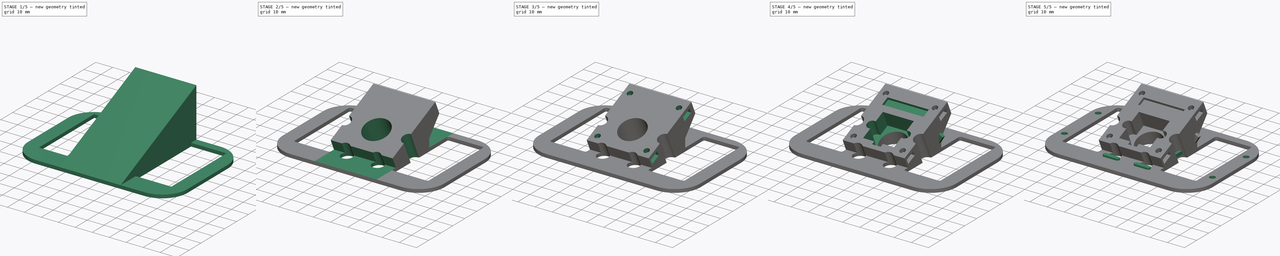
[diagram: build sequence overview — one tinted view per stage of 5, left to right]
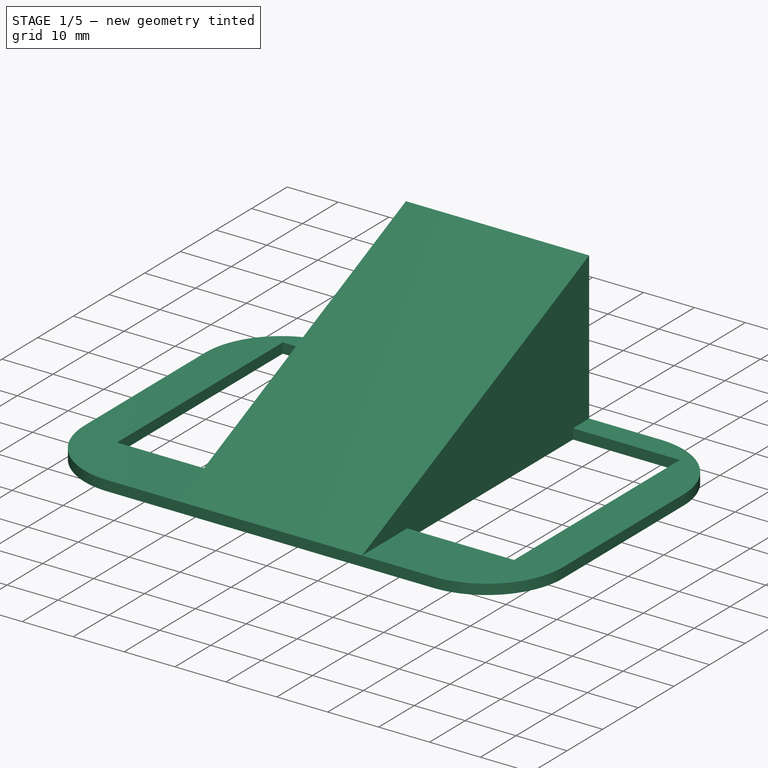
[diagram: stage 1 of 5 — iso view after this stage's code; geometry added in this stage tinted green]
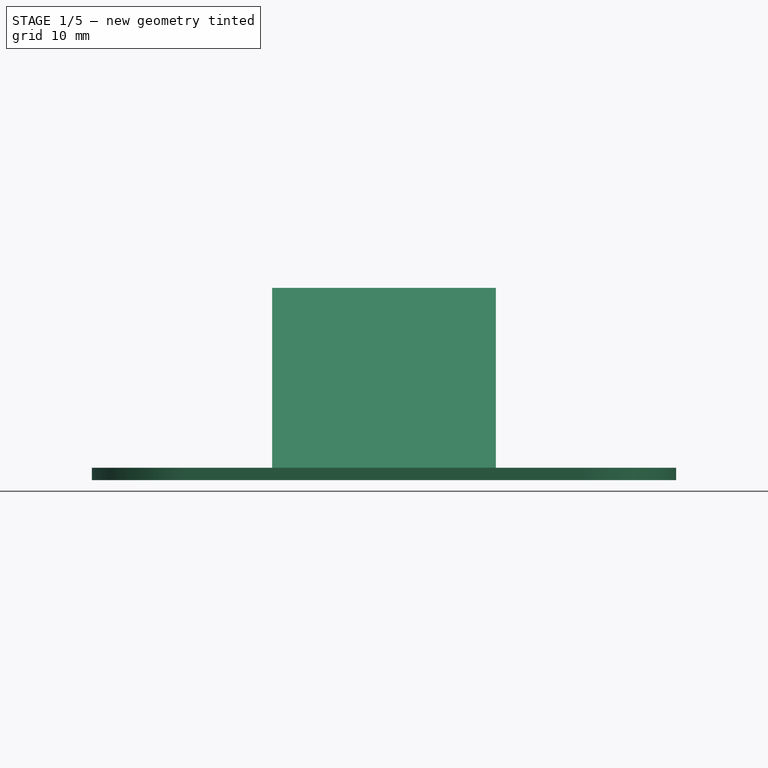
[diagram: stage 1 of 5 — front view after this stage's code; geometry added in this stage tinted green]
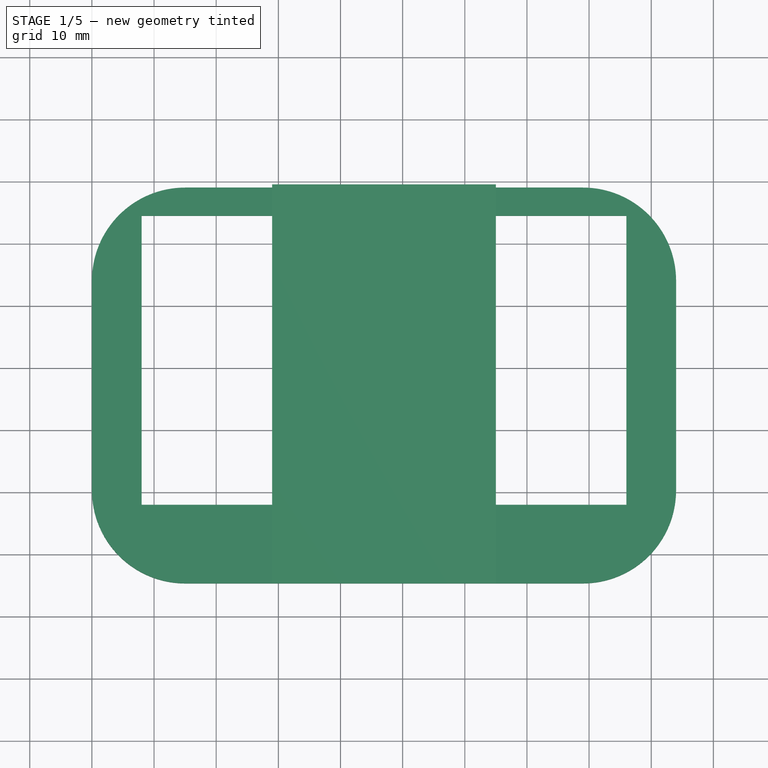
[diagram: stage 1 of 5 — top view after this stage's code; geometry added in this stage tinted green]
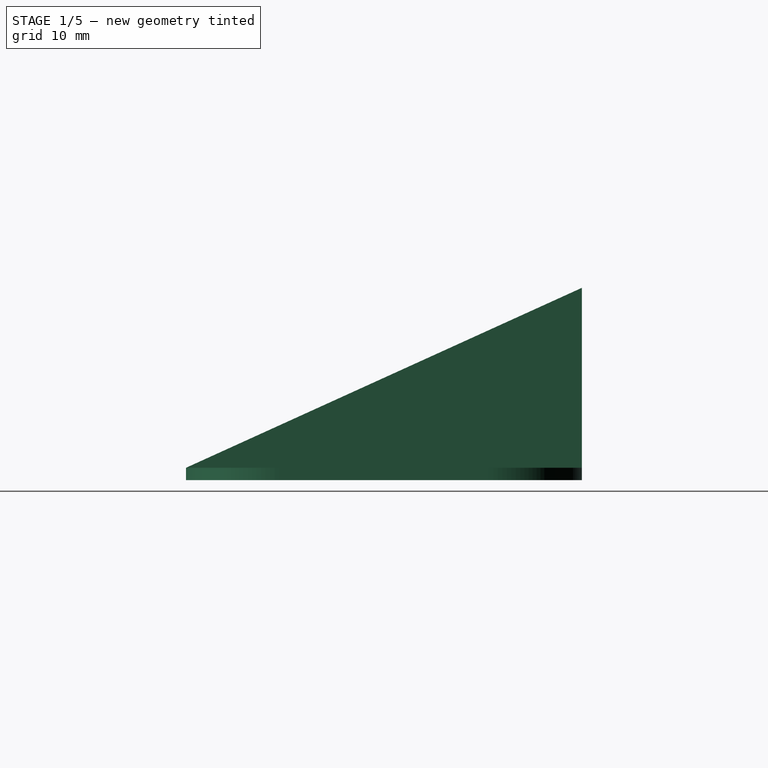
[diagram: stage 1 of 5 — right view after this stage's code; geometry added in this stage tinted green]
FCSTD DOCUMENT  (FreeCAD 0.18R4 (GitTag))
Label: Cameramount
License: CreativeCommons Attribution-NonCommercial
LicenseURL: http://creativecommons.org/licenses/by-nc/4.0/
objects: Sketcher::SketchObject×15, PartDesign::Pocket×10, PartDesign::Pad×5, PartDesign::Fillet×1, PartDesign::Body×1
note: 47 computed .brp shape members not serialized (recipe doc carries the construction recipe); baked Part::Feature solids carry a one-line shape summary decoded from their .brp

FEATURE [Sketcher::SketchObject] Sketch144
  AttachmentOffset = pos=(0,0,57) rot=(0,0,1;0rad)
  MapMode = 5
  Placement = pos=(57,-1.27e-14,1.27e-14) rot=(0.57735,0.57735,0.57735;2.0944rad)
  Support = -> [YZ_Plane019]
  sketch-geometry (3):
    g0: LineSegment StartX=-14.65 StartY=44 StartZ=0 EndX=49.05 EndY=44 EndZ=0
    g1: LineSegment StartX=49.05 StartY=44 StartZ=0 EndX=49.05 EndY=72.9546 EndZ=0
    g2: LineSegment StartX=49.05 StartY=72.9546 StartZ=0 EndX=-14.65 EndY=44 EndZ=0
  constraints (9):
    c: Horizontal(g0)
    c: Coincident(g0,g1)
    c: Vertical(g1)
    c: Coincident(g1,g2)
    c: Coincident(g2,g0)
    c: Angle(g0,g2) = 0.426628
    c: DistanceY(g-1,g0) = 44
    c: DistanceX(g0,g-1) = 14.65
    c: DistanceX(g0,g0) = 63.7
FEATURE [Sketcher::SketchObject] Sketch143
  AttachmentOffset = pos=(0,0,42) rot=(0,0,1;0rad)
  MapMode = 5
  Placement = pos=(0,0,42) rot=(0,0,1;0rad)
  Support = -> [XY_Plane019]
  sketch-geometry (8):
    g0: ArcOfCircle CenterX=25 CenterY=0.35 CenterZ=0 NormalX=0 NormalY=0 NormalZ=1 AngleXU=0 Radius=15 StartAngle=3.14159 EndAngle=4.71239
    g1: LineSegment StartX=25 StartY=-14.65 StartZ=0 EndX=89 EndY=-14.65 EndZ=0
    g2: ArcOfCircle CenterX=89 CenterY=0.35 CenterZ=0 NormalX=0 NormalY=0 NormalZ=1 AngleXU=0 Radius=15 StartAngle=4.71239 EndAngle=6.28319
    g3: ArcOfCircle CenterX=25 CenterY=34.05 CenterZ=0 NormalX=0 NormalY=0 NormalZ=1 AngleXU=0 Radius=15 StartAngle=1.5708 EndAngle=3.14159
    g4: LineSegment StartX=25 StartY=49.05 StartZ=0 EndX=89 EndY=49.05 EndZ=0
    g5: LineSegment StartX=10 StartY=34.05 StartZ=0 EndX=10 EndY=0.35 EndZ=0
    g6: ArcOfCircle CenterX=89 CenterY=34.05 CenterZ=0 NormalX=0 NormalY=0 NormalZ=1 AngleXU=0 Radius=15 StartAngle=0 EndAngle=1.5708
    g7: LineSegment StartX=104 StartY=34.05 StartZ=0 EndX=104 EndY=0.35 EndZ=0
  constraints (21):
    c: Horizontal(g1)
    c: Tangent(g1,g0) = -1.5708
    c: Angle(g0) = 1.5708
    c: DistanceX(g-1,g0) = 25
    c: DistanceX(g1,g1) = 64
    c: Equal(g0,g2)
    c: DistanceY(g0,g-1) = 14.65
    c: Horizontal(g4)
    c: Vertical(g0,g3)
    c: Vertical(g4,g1)
    c: Tangent(g2,g1) = -1.5708
    c: Tangent(g4,g3) = 1.5708
    c: Vertical(g5)
    c: Coincident(g5,g0)
    c: Tangent(g5,g3) = -1.5708
    c: DistanceY(g0,g3) = 63.7
    c: Vertical(g7)
    c: Tangent(g7,g2) = 1.5708
    c: Tangent(g7,g6) = 1.5708
    c: Tangent(g6,g4) = 1.5708
    c: DistanceX(g-1,g0) = 10
FEATURE [Sketcher::SketchObject] Sketch154
  AttachmentOffset = pos=(0,0,-29) rot=(0,0,1;0rad)
  MapMode = 5
  Placement = pos=(0,29,6.4e-15) rot=(1,0,0;1.5708rad)
  Support = -> [XZ_Plane019]
  sketch-geometry (6):
    g0: LineSegment StartX=39 StartY=47 StartZ=0 EndX=39 EndY=52 EndZ=0
    g1: LineSegment StartX=39 StartY=52 StartZ=0 EndX=36.8349 EndY=50.75 EndZ=0
    g2: LineSegment StartX=36.8349 StartY=50.75 StartZ=0 EndX=39 EndY=47 EndZ=0
    g3: LineSegment StartX=75 StartY=52 StartZ=0 EndX=75 EndY=47 EndZ=0
    g4: LineSegment StartX=75 StartY=47 StartZ=0 EndX=77.1651 EndY=50.75 EndZ=0
    g5: LineSegment StartX=77.1651 StartY=50.75 StartZ=0 EndX=75 EndY=52 EndZ=0
  constraints (18):
    c: Vertical(g0)
    c: Coincident(g0,g1)
    c: Coincident(g1,g2)
    c: Coincident(g2,g0)
    c: Vertical(g3)
    c: Coincident(g3,g4)
    c: Coincident(g4,g5)
    c: Coincident(g5,g3)
    c: Equal(g0,g3)
    c: Equal(g5,g1)
    c: Equal(g2,g4)
    c: Perpendicular(g5,g4)
    c: Horizontal(g3,g0)
    c: DistanceX(g0,g3) = 36
    c: DistanceX(g-1,g0) = 39
    c: DistanceY(g-1,g0) = 47
    c: Angle(g3,g5) = 1.0472
    c: DistanceY(g3,g3) = 5
FEATURE [PartDesign::Pad] Pad047  label="Base"
  Length = 2
  Length2 = 100
  Profile = -> Sketch143
  Type = 0
FEATURE [PartDesign::Pad] Pad048  label="Camerawedge"
  BaseFeature = -> Pad047
  Length = 18
  Length2 = 18
  Profile = -> Sketch144
  Type = 4
FEATURE [Sketcher::SketchObject] Sketch145
  MapMode = 5
  Placement = pos=(0,0,44) rot=(0,0,1;0rad)
  Support = -> [Pad048]
  sketch-geometry (8):
    g0: LineSegment StartX=75 StartY=-2 StartZ=0 EndX=96 EndY=-2 EndZ=0
    g1: LineSegment StartX=96 StartY=-2 StartZ=0 EndX=96 EndY=44.5 EndZ=0
    g2: LineSegment StartX=96 StartY=44.5 StartZ=0 EndX=75 EndY=44.5 EndZ=0
    g3: LineSegment StartX=75 StartY=44.5 StartZ=0 EndX=75 EndY=-2 EndZ=0
    g4: LineSegment StartX=18 StartY=-2 StartZ=0 EndX=39 EndY=-2 EndZ=0
    g5: LineSegment StartX=39 StartY=-2 StartZ=0 EndX=39 EndY=44.5 EndZ=0
    g6: LineSegment StartX=39 StartY=44.5 StartZ=0 EndX=18 EndY=44.5 EndZ=0
    g7: LineSegment StartX=18 StartY=44.5 StartZ=0 EndX=18 EndY=-2 EndZ=0
  constraints (24):
    c: Coincident(g0,g1)
    c: Coincident(g1,g2)
    c: Coincident(g2,g3)
    c: Coincident(g3,g0)
    c: Horizontal(g0)
    c: Horizontal(g2)
    c: Vertical(g1)
    c: Vertical(g3)
    c: Coincident(g4,g5)
    c: Coincident(g5,g6)
    c: Coincident(g6,g7)
    c: Coincident(g7,g4)
    c: Horizontal(g4)
    c: Horizontal(g6)
    c: Vertical(g5)
    c: Vertical(g7)
    c: DistanceX(g6,g6) = 21
    c: DistanceX(g5,g2) = 36
    c: DistanceX(g-1,g5) = 39
    c: DistanceY(g7,g7) = 46.5
    c: Horizontal(g5,g2)
    c: Equal(g1,g7)
    c: Equal(g2,g6)
    c: DistanceY(g4,g-1) = 2
FEATURE [PartDesign::Pocket] Pocket061  label="Ultrasonic Sensor Holes"
  BaseFeature = -> Pad048
  Length = 2
  Length2 = 100
  Profile = -> Sketch145
  Type = 0
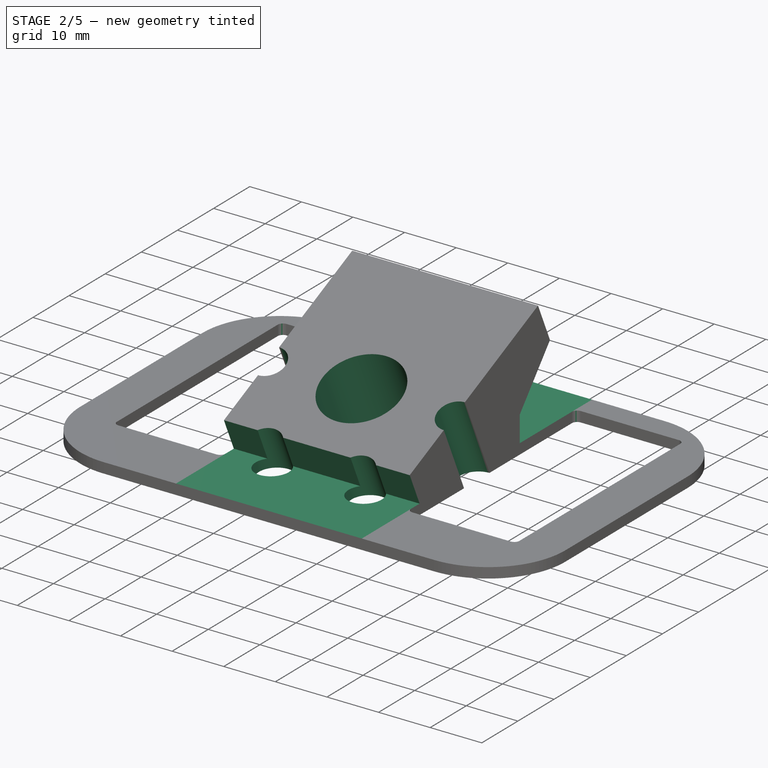
[diagram: stage 2 of 5 — iso view after this stage's code; geometry added in this stage tinted green]
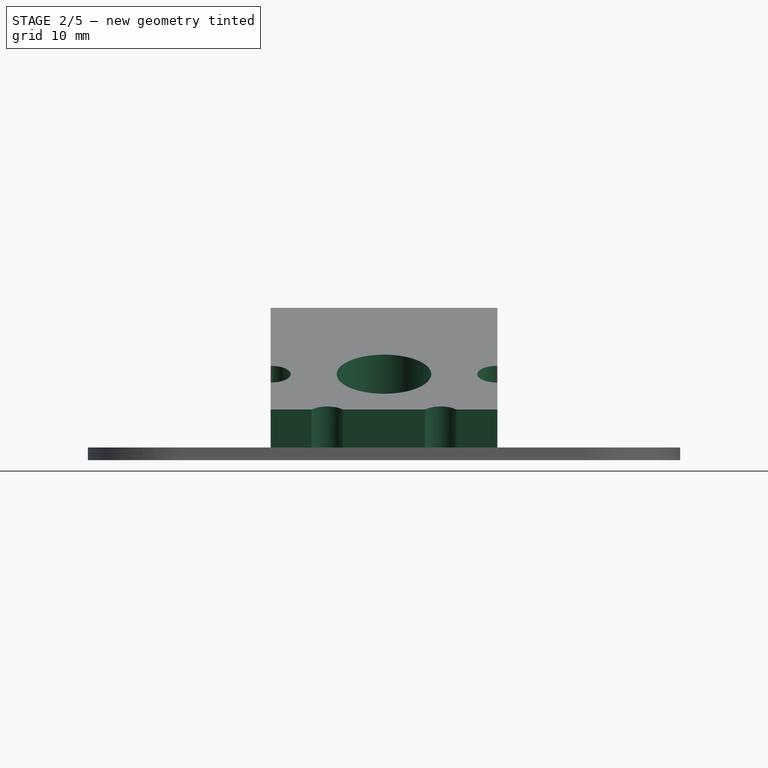
[diagram: stage 2 of 5 — front view after this stage's code; geometry added in this stage tinted green]
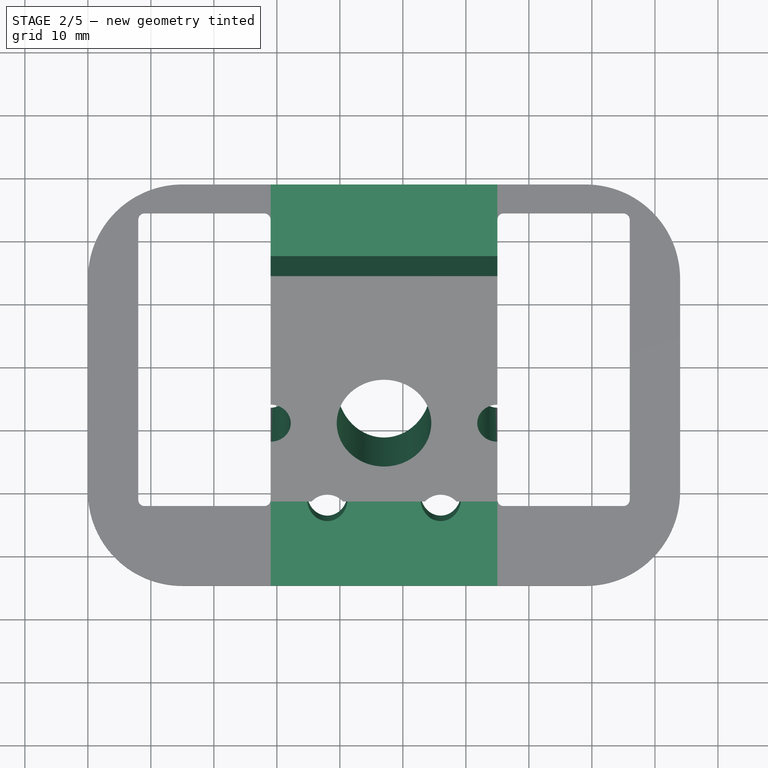
[diagram: stage 2 of 5 — top view after this stage's code; geometry added in this stage tinted green]
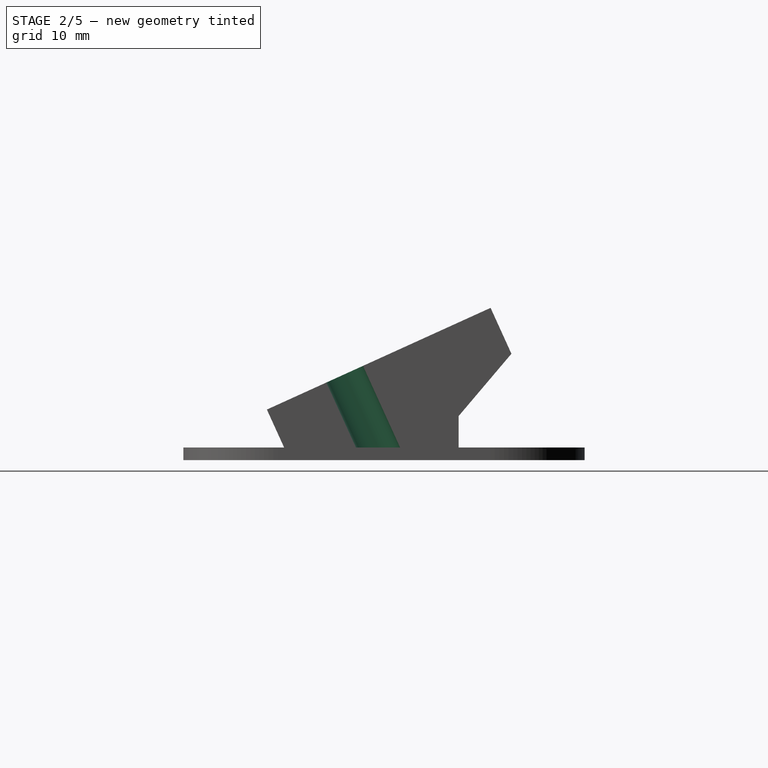
[diagram: stage 2 of 5 — right view after this stage's code; geometry added in this stage tinted green]
FEATURE [PartDesign::Fillet] Fillet010  label="Smooth Ultrasonic Sensor Holes"
  Base = -> Pocket061 [Edge58,Edge57,Edge55,Edge56,Edge50,Edge51,Edge52,Edge54]
  BaseFeature = -> Pocket061
  Radius = 1
FEATURE [Sketcher::SketchObject] Sketch146
  ExternalGeometry = -> [Fillet010]
  MapMode = 5
  Placement = pos=(75,-1.65e-14,1.87e-14) rot=(0.57735,0.57735,0.57735;2.0944rad)
  Support = -> [Fillet010]
  sketch-geometry (9):
    g0: LineSegment StartX=-14.65 StartY=44 StartZ=0 EndX=1.35 EndY=44 EndZ=0
    g1: LineSegment StartX=1.35 StartY=44 StartZ=0 EndX=-1.38974 EndY=50.0274 EndZ=0
    g2: LineSegment StartX=-1.38974 StartY=50.0274 StartZ=0 EndX=-14.65 EndY=44 EndZ=0
    g3: LineSegment StartX=34.1145 StartY=66.1657 StartZ=0 EndX=37.425 EndY=58.8828 EndZ=0
    g4: LineSegment StartX=37.425 StartY=58.8828 StartZ=0 EndX=29.05 EndY=49 EndZ=0
    g5: LineSegment StartX=29.05 StartY=44 StartZ=0 EndX=49.05 EndY=44 EndZ=0
    g6: LineSegment StartX=49.05 StartY=44 StartZ=0 EndX=49.05 EndY=72.9546 EndZ=0
    g7: LineSegment StartX=49.05 StartY=72.9546 StartZ=0 EndX=34.1145 EndY=66.1657 EndZ=0
    g8: LineSegment StartX=29.05 StartY=44 StartZ=0 EndX=29.05 EndY=49 EndZ=0
  constraints (25):
    c: Horizontal(g0)
    c: Coincident(g0,g1)
    c: Coincident(g1,g2)
    c: Coincident(g0,g2)
    c: Coincident(g0,g-3)
    c: PointOnObject(g1,g-4)
    c: Perpendicular(g1,g2)
    c: DistanceX(g0,g0) = 16
    c: PointOnObject(g3,g-4)
    c: Coincident(g3,g4)
    c: Horizontal(g5)
    c: Coincident(g5,g6)
    c: Coincident(g6,g-4)
    c: Vertical(g6)
    c: Coincident(g6,g7)
    c: Coincident(g7,g3)
    c: Perpendicular(g7,g3)
    c: Horizontal(g5,g0)
    c: Distance(g3) = 8
    c: DistanceX(g5,g5) = 20
    c: Distance(g3,g1) = 39
    c: Coincident(g8,g5)
    c: Coincident(g8,g4)
    c: Vertical(g8)
    c: DistanceY(g8,g8) = 5
FEATURE [PartDesign::Pocket] Pocket062  label="Reduce Camerawedge"
  BaseFeature = -> Fillet010
  Length = 36
  Length2 = 100
  Profile = -> Sketch146
  Type = 0
FEATURE [Sketcher::SketchObject] Sketch148
  AttachmentOffset = pos=(0,0,-18) rot=(0,0,1;0rad)
  MapMode = 5
  Placement = pos=(-9.6e-15,-11.6355,25.598) rot=(1,0,0;0.426628rad)
  Support = -> [Pocket062]
  sketch-geometry (15):
    g0: LineSegment [constr] StartX=66 StartY=48.5885 StartZ=0 EndX=48 EndY=48.5885 EndZ=0
    g1: LineSegment [constr] StartX=48 StartY=48.5885 StartZ=0 EndX=39 EndY=33 EndZ=0
    g2: LineSegment [constr] StartX=39 StartY=33 StartZ=0 EndX=48 EndY=17.4115 EndZ=0
    g3: LineSegment [constr] StartX=48 StartY=17.4115 StartZ=0 EndX=66 EndY=17.4115 EndZ=0
    g4: LineSegment [constr] StartX=66 StartY=17.4115 StartZ=0 EndX=75 EndY=33 EndZ=0
    g5: LineSegment [constr] StartX=75 StartY=33 StartZ=0 EndX=66 EndY=48.5885 EndZ=0
    g6: Circle [constr] CenterX=57 CenterY=33 CenterZ=0 NormalX=0 NormalY=0 NormalZ=1 AngleXU=0 Radius=18
    g7: Circle [constr] CenterX=66 CenterY=17.4115 CenterZ=0 NormalX=0 NormalY=0 NormalZ=1 AngleXU=0 Radius=1.6e-15
    g8: Circle CenterX=48 CenterY=48.5885 CenterZ=0 NormalX=0 NormalY=0 NormalZ=1 AngleXU=0 Radius=3.2
    g9: Circle CenterX=66 CenterY=48.5885 CenterZ=0 NormalX=0 NormalY=0 NormalZ=1 AngleXU=0 Radius=3.2
    g10: Circle [constr] CenterX=39 CenterY=33 CenterZ=0 NormalX=0 NormalY=0 NormalZ=1 AngleXU=0 Radius=3.2
    g11: Circle [constr] CenterX=48 CenterY=17.4115 CenterZ=0 NormalX=0 NormalY=0 NormalZ=1 AngleXU=0 Radius=3.2
    g12: Circle [constr] CenterX=66 CenterY=17.4115 CenterZ=0 NormalX=0 NormalY=0 NormalZ=1 AngleXU=0 Radius=3.2
    g13: Circle [constr] CenterX=75 CenterY=33 CenterZ=0 NormalX=0 NormalY=0 NormalZ=1 AngleXU=0 Radius=3.2
    g14: Circle [constr] CenterX=57 CenterY=33 CenterZ=0 NormalX=0 NormalY=0 NormalZ=1 AngleXU=0 Radius=7.5
  constraints (33):
    c: Coincident(g0,g1)
    c: Coincident(g1,g2)
    c: Coincident(g2,g3)
    c: Coincident(g3,g4)
    c: Coincident(g4,g5)
    c: Coincident(g5,g0)
    c: Equal(g0, g1-g5) x5
    c: PointOnObject(g0,g6)
    c: PointOnObject(g1,g6)
    c: PointOnObject(g2,g6)
    c: PointOnObject(g3,g6)
    c: PointOnObject(g4,g6)
    c: PointOnObject(g5,g6)
    c: DistanceX(g0,g0) = 18
    c: DistanceX(g-1,g6) = 57
    c: DistanceY(g-1,g6) = 33
    c: Horizontal(g0)
    c: Coincident(g7,g3)
    c: Tangent(g7,g6)
    c: Coincident(g8,g0)
    c: Coincident(g9,g0)
    c: Equal(g8,g9)
    c: Coincident(g10,g1)
    c: Coincident(g11,g2)
    c: Coincident(g12,g7)
    c: Coincident(g13,g4)
    c: Equal(g13,g10)
    c: Equal(g10,g11)
    c: Equal(g11,g12)
    c: Equal(g13,g9)
    c: Radius(g13) = 3.2
    c: Coincident(g14,g6)
    c: Radius(g14) = 7.5
FEATURE [Sketcher::SketchObject] Sketch147
  MapMode = 5
  Placement = pos=(-1.57e-14,-19.0839,41.9846) rot=(1,0,0;0.426628rad)
  Support = -> [Pocket062]
  sketch-geometry (15):
    g0: LineSegment [constr] StartX=66 StartY=48.5885 StartZ=0 EndX=48 EndY=48.5885 EndZ=0
    g1: LineSegment [constr] StartX=48 StartY=48.5885 StartZ=0 EndX=39 EndY=33 EndZ=0
    g2: LineSegment [constr] StartX=39 StartY=33 StartZ=0 EndX=48 EndY=17.4115 EndZ=0
    g3: LineSegment [constr] StartX=48 StartY=17.4115 StartZ=0 EndX=66 EndY=17.4115 EndZ=0
    g4: LineSegment [constr] StartX=66 StartY=17.4115 StartZ=0 EndX=75 EndY=33 EndZ=0
    g5: LineSegment [constr] StartX=75 StartY=33 StartZ=0 EndX=66 EndY=48.5885 EndZ=0
    g6: Circle [constr] CenterX=57 CenterY=33 CenterZ=0 NormalX=0 NormalY=0 NormalZ=1 AngleXU=0 Radius=18
    g7: Circle [constr] CenterX=66 CenterY=17.4115 CenterZ=0 NormalX=0 NormalY=0 NormalZ=1 AngleXU=0 Radius=1.6e-15
    g8: Circle [constr] CenterX=48 CenterY=48.5885 CenterZ=0 NormalX=0 NormalY=0 NormalZ=1 AngleXU=0 Radius=3.2
    g9: Circle [constr] CenterX=66 CenterY=48.5885 CenterZ=0 NormalX=0 NormalY=0 NormalZ=1 AngleXU=0 Radius=3.2
    g10: Circle CenterX=39 CenterY=33 CenterZ=0 NormalX=0 NormalY=0 NormalZ=1 AngleXU=0 Radius=3.2
    g11: Circle CenterX=48 CenterY=17.4115 CenterZ=0 NormalX=0 NormalY=0 NormalZ=1 AngleXU=0 Radius=3.2
    g12: Circle CenterX=66 CenterY=17.4115 CenterZ=0 NormalX=0 NormalY=0 NormalZ=1 AngleXU=0 Radius=3.2
    g13: Circle CenterX=75 CenterY=33 CenterZ=0 NormalX=0 NormalY=0 NormalZ=1 AngleXU=0 Radius=3.2
    g14: Circle CenterX=57 CenterY=33 CenterZ=0 NormalX=0 NormalY=0 NormalZ=1 AngleXU=0 Radius=7.5
  constraints (33):
    c: Coincident(g0,g1)
    c: Coincident(g1,g2)
    c: Coincident(g2,g3)
    c: Coincident(g3,g4)
    c: Coincident(g4,g5)
    c: Coincident(g5,g0)
    c: Equal(g0, g1-g5) x5
    c: PointOnObject(g0,g6)
    c: PointOnObject(g1,g6)
    c: PointOnObject(g2,g6)
    c: PointOnObject(g3,g6)
    c: PointOnObject(g4,g6)
    c: PointOnObject(g5,g6)
    c: DistanceX(g0,g0) = 18
    c: DistanceX(g-1,g6) = 57
    c: DistanceY(g-1,g6) = 33
    c: Horizontal(g0)
    c: Coincident(g7,g3)
    c: Tangent(g7,g6)
    c: Coincident(g8,g0)
    c: Coincident(g9,g0)
    c: Equal(g8,g9)
    c: Coincident(g10,g1)
    c: Coincident(g11,g2)
    c: Coincident(g12,g7)
    c: Coincident(g13,g4)
    c: Equal(g13,g10)
    c: Equal(g10,g11)
    c: Equal(g11,g12)
    c: Equal(g13,g9)
    c: Radius(g13) = 3.2
    c: Coincident(g14,g6)
    c: Radius(g14) = 7.5
FEATURE [PartDesign::Pocket] Pocket063  label="Bottom LED and Camera Holes"
  BaseFeature = -> Pocket062
  Length = 40
  Length2 = 100
  Profile = -> Sketch147
  Type = 0
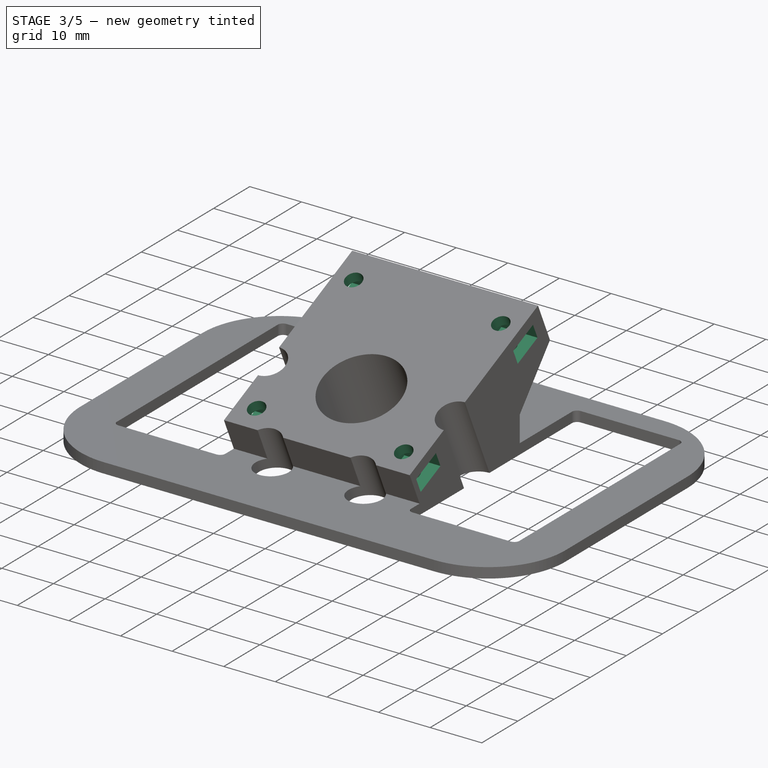
[diagram: stage 3 of 5 — iso view after this stage's code; geometry added in this stage tinted green]
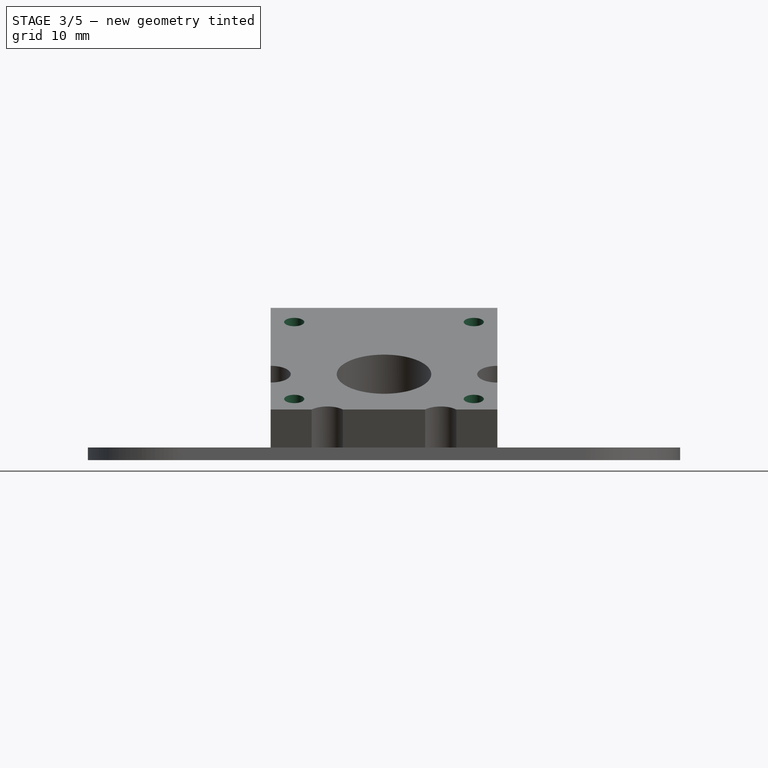
[diagram: stage 3 of 5 — front view after this stage's code; geometry added in this stage tinted green]
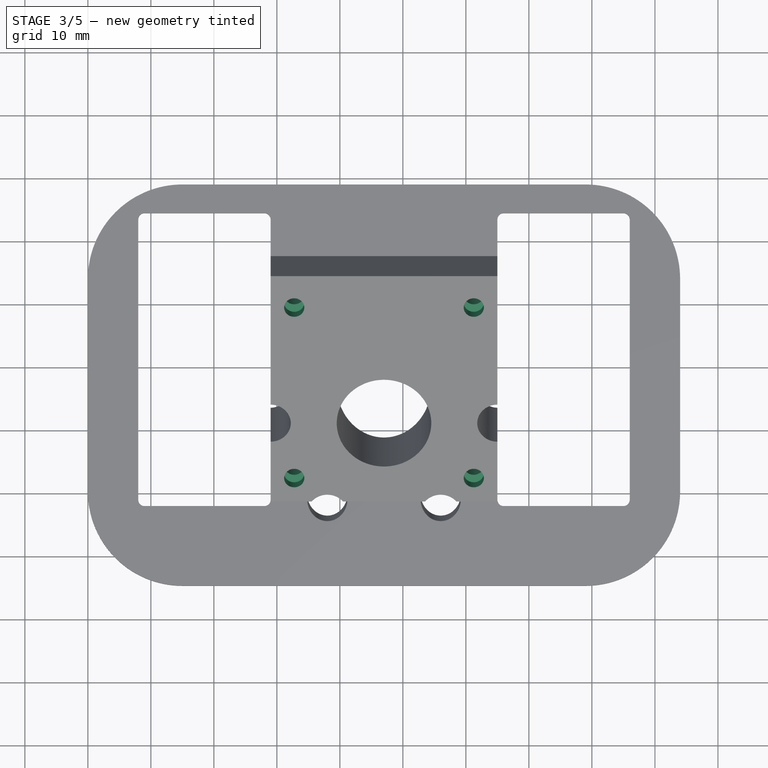
[diagram: stage 3 of 5 — top view after this stage's code; geometry added in this stage tinted green]
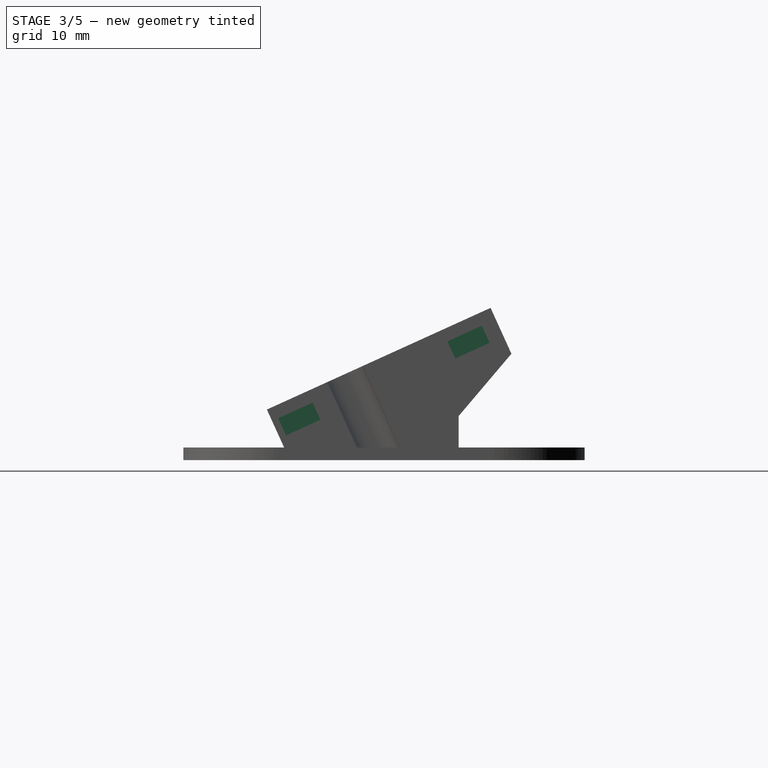
[diagram: stage 3 of 5 — right view after this stage's code; geometry added in this stage tinted green]
FEATURE [PartDesign::Pocket] Pocket064  label="Top LED Holes"
  BaseFeature = -> Pocket063
  Length = 16
  Length2 = 100
  Profile = -> Sketch148
  Type = 0
FEATURE [Sketcher::SketchObject] Sketch149
  MapMode = 5
  Placement = pos=(-1.57e-14,-19.0839,41.9846) rot=(1,0,0;0.426628rad)
  Support = -> [Pocket064]
  sketch-geometry (5):
    g0: Circle [constr] CenterX=57 CenterY=33 CenterZ=0 NormalX=0 NormalY=0 NormalZ=1 AngleXU=0 Radius=1.6
    g1: Circle CenterX=42.75 CenterY=53 CenterZ=0 NormalX=0 NormalY=0 NormalZ=1 AngleXU=0 Radius=1.6
    g2: Circle CenterX=71.25 CenterY=53 CenterZ=0 NormalX=0 NormalY=0 NormalZ=1 AngleXU=0 Radius=1.6
    g3: Circle CenterX=71.25 CenterY=23.5 CenterZ=0 NormalX=0 NormalY=0 NormalZ=1 AngleXU=0 Radius=1.6
    g4: Circle CenterX=42.75 CenterY=23.5 CenterZ=0 NormalX=0 NormalY=0 NormalZ=1 AngleXU=0 Radius=1.6
  constraints (15):
    c: DistanceX(g-1,g0) = 57
    c: DistanceY(g-1,g0) = 33
    c: Horizontal(g4,g3)
    c: Horizontal(g1,g2)
    c: Vertical(g3,g2)
    c: Vertical(g4,g1)
    c: Equal(g1,g2)
    c: Equal(g2,g4)
    c: Equal(g4,g3)
    c: Radius(g2) = 1.6
    c: DistanceX(g1,g2) = 28.5
    c: DistanceY(g4,g1) = 29.5
    c: DistanceY(g3,g0) = 9.5
    c: Equal(g0,g3)
    c: DistanceX(g0,g3) = 14.25
FEATURE [PartDesign::Pocket] Pocket065  label="Camera Screwholes"
  BaseFeature = -> Pocket064
  Length = 8
  Length2 = 100
  Profile = -> Sketch149
  Type = 0
FEATURE [Sketcher::SketchObject] Sketch150
  ExternalGeometry = -> [Pocket065]
  MapMode = 5
  Placement = pos=(75,-1.65e-14,1.87e-14) rot=(0.57735,0.57735,0.57735;2.0944rad)
  Support = -> [Pocket065]
  sketch-geometry (8):
    g0: LineSegment StartX=0.406178 StartY=48.6468 StartZ=0 EndX=5.86837 EndY=51.1296 EndZ=0
    g1: LineSegment StartX=5.86837 StartY=51.1296 StartZ=0 EndX=7.10979 EndY=48.3985 EndZ=0
    g2: LineSegment StartX=7.10979 StartY=48.3985 StartZ=0 EndX=1.64759 EndY=45.9157 EndZ=0
    g3: LineSegment StartX=1.64759 StartY=45.9157 StartZ=0 EndX=0.406178 EndY=48.6468 EndZ=0
    g4: LineSegment StartX=27.262 StartY=60.854 StartZ=0 EndX=32.7242 EndY=63.3368 EndZ=0
    g5: LineSegment StartX=32.7242 StartY=63.3368 StartZ=0 EndX=33.9656 EndY=60.6057 EndZ=0
    g6: LineSegment StartX=33.9656 StartY=60.6057 StartZ=0 EndX=28.5034 EndY=58.1229 EndZ=0
    g7: LineSegment StartX=28.5034 StartY=58.1229 StartZ=0 EndX=27.262 EndY=60.854 EndZ=0
  constraints (22):
    c: Coincident(g0,g1)
    c: Coincident(g1,g2)
    c: Coincident(g2,g3)
    c: Coincident(g3,g0)
    c: Coincident(g4,g5)
    c: Coincident(g5,g6)
    c: Coincident(g6,g7)
    c: Coincident(g7,g4)
    c: Parallel(g0,g2)
    c: Parallel(g4,g6)
    c: Parallel(g5,g7)
    c: Parallel(g7,g1)
    c: Parallel(g1,g3)
    c: Perpendicular(g5,g4)
    c: Distance(g5) = 3
    c: Distance(g4) = 6
    c: Distance(g4,g-3) = 2
    c: Symmetric(g4,g4,g-5)
    c: Symmetric(g0,g0,g-4)
    c: Distance(g0,g-3) = 2
    c: Equal(g1,g7)
    c: Equal(g2,g6)
FEATURE [PartDesign::Pocket] Pocket066  label="Camera Nutholes Right"
  BaseFeature = -> Pocket065
  Length = 7
  Length2 = 100
  Profile = -> Sketch150
  Type = 0
FEATURE [Sketcher::SketchObject] Sketch151
  AttachmentOffset = pos=(0,0,-36) rot=(0,0,1;0rad)
  ExternalGeometry = -> [Pocket065]
  MapMode = 5
  Placement = pos=(39,-8.5e-15,1.08e-14) rot=(0.57735,0.57735,0.57735;2.0944rad)
  Support = -> [Pocket065]
  sketch-geometry (8):
    g0: LineSegment StartX=0.406178 StartY=48.6468 StartZ=0 EndX=5.86837 EndY=51.1296 EndZ=0
    g1: LineSegment StartX=5.86837 StartY=51.1296 StartZ=0 EndX=7.10979 EndY=48.3985 EndZ=0
    g2: LineSegment StartX=7.10979 StartY=48.3985 StartZ=0 EndX=1.64759 EndY=45.9157 EndZ=0
    g3: LineSegment StartX=1.64759 StartY=45.9157 StartZ=0 EndX=0.406178 EndY=48.6468 EndZ=0
    g4: LineSegment StartX=27.262 StartY=60.854 StartZ=0 EndX=32.7242 EndY=63.3368 EndZ=0
    g5: LineSegment StartX=32.7242 StartY=63.3368 StartZ=0 EndX=33.9656 EndY=60.6057 EndZ=0
    g6: LineSegment StartX=33.9656 StartY=60.6057 StartZ=0 EndX=28.5034 EndY=58.1229 EndZ=0
    g7: LineSegment StartX=28.5034 StartY=58.1229 StartZ=0 EndX=27.262 EndY=60.854 EndZ=0
  constraints (22):
    c: Coincident(g0,g1)
    c: Coincident(g1,g2)
    c: Coincident(g2,g3)
    c: Coincident(g3,g0)
    c: Coincident(g4,g5)
    c: Coincident(g5,g6)
    c: Coincident(g6,g7)
    c: Coincident(g7,g4)
    c: Parallel(g0,g2)
    c: Parallel(g4,g6)
    c: Parallel(g5,g7)
    c: Parallel(g7,g1)
    c: Parallel(g1,g3)
    c: Perpendicular(g5,g4)
    c: Distance(g5) = 3
    c: Distance(g4) = 6
    c: Distance(g4,g-3) = 2
    c: Symmetric(g4,g4,g-5)
    c: Symmetric(g0,g0,g-4)
    c: Distance(g0,g-3) = 2
    c: Equal(g1,g7)
    c: Equal(g2,g6)
FEATURE [PartDesign::Pocket] Pocket067  label="Camera Nutholes Left"
  BaseFeature = -> Pocket066
  Length = 7
  Length2 = 100
  Profile = -> Sketch151
  Reversed = true
  Type = 0
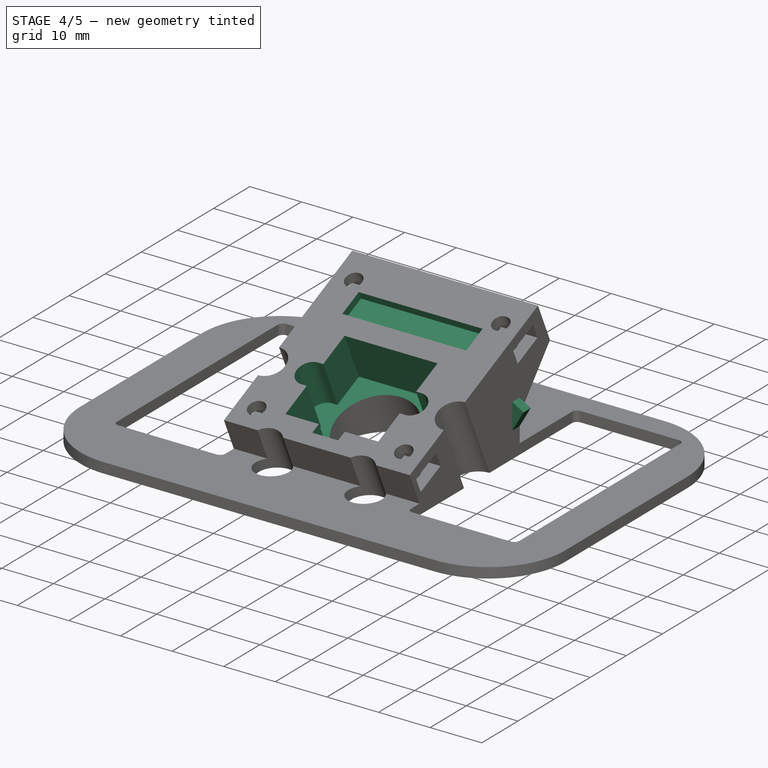
[diagram: stage 4 of 5 — iso view after this stage's code; geometry added in this stage tinted green]
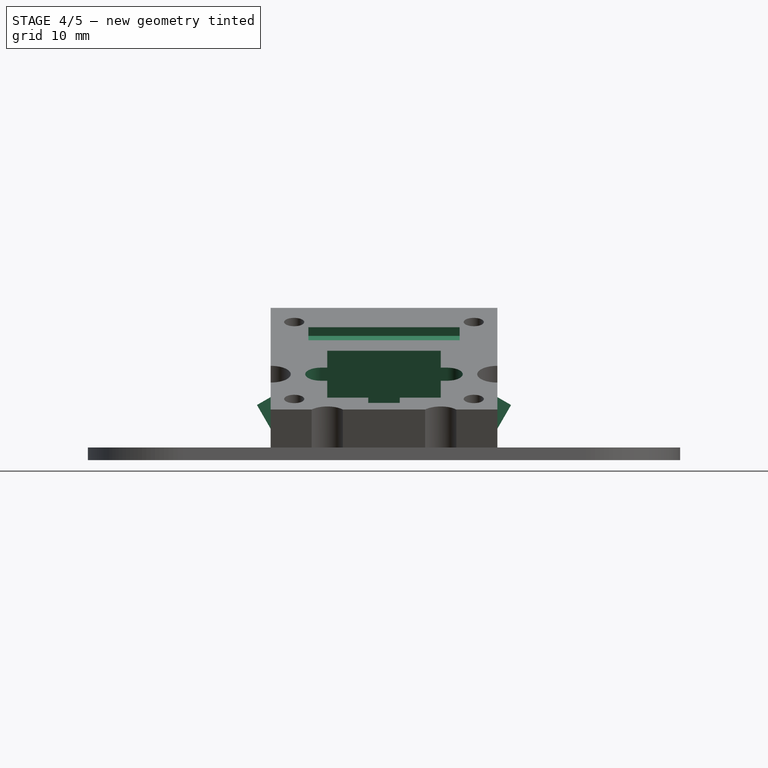
[diagram: stage 4 of 5 — front view after this stage's code; geometry added in this stage tinted green]
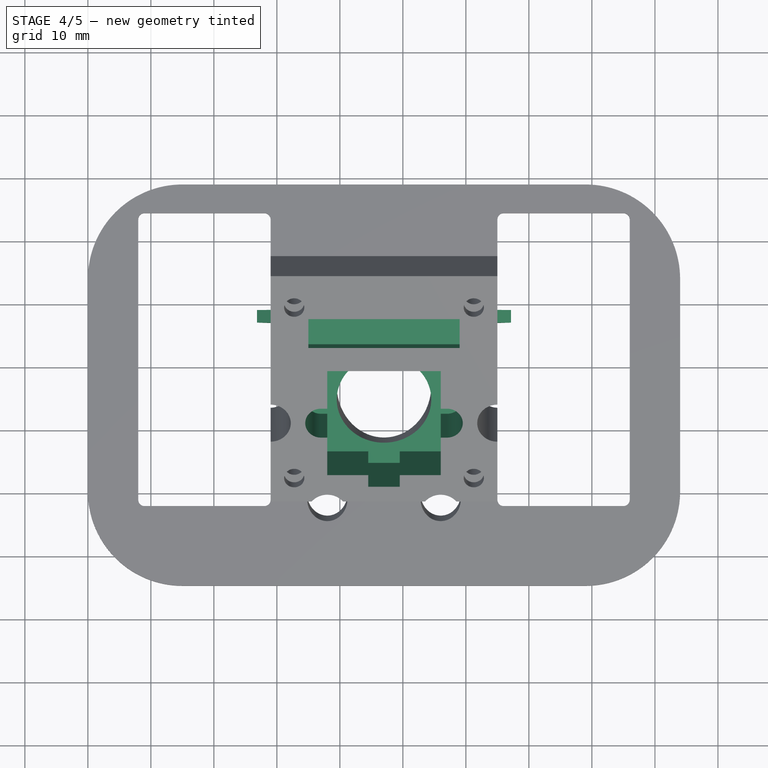
[diagram: stage 4 of 5 — top view after this stage's code; geometry added in this stage tinted green]
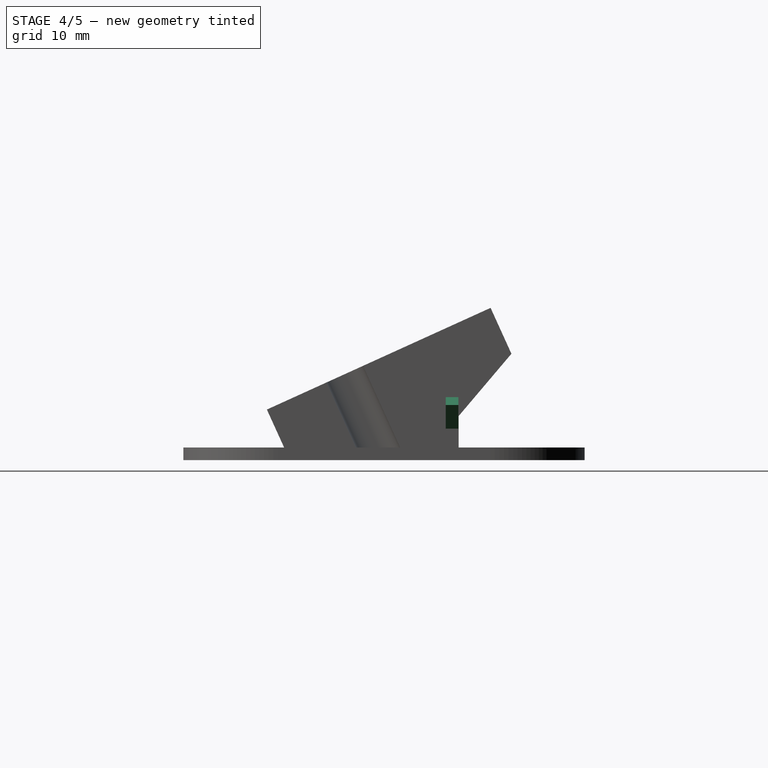
[diagram: stage 4 of 5 — right view after this stage's code; geometry added in this stage tinted green]
FEATURE [Sketcher::SketchObject] Sketch152
  MapMode = 5
  Placement = pos=(-1.57e-14,-19.0839,41.9846) rot=(1,0,0;0.426628rad)
  Support = -> [Pocket067]
  sketch-geometry (20):
    g0: LineSegment StartX=48 StartY=42 StartZ=0 EndX=66 EndY=42 EndZ=0
    g1: LineSegment StartX=66 StartY=42 StartZ=0 EndX=66 EndY=35.5 EndZ=0
    g2: LineSegment StartX=66 StartY=35.5 StartZ=0 EndX=67 EndY=35.5 EndZ=0
    g3: ArcOfCircle CenterX=67 CenterY=33 CenterZ=0 NormalX=0 NormalY=0 NormalZ=1 AngleXU=0 Radius=2.5 StartAngle=4.71239 EndAngle=7.85398
    g4: LineSegment StartX=67 StartY=30.5 StartZ=0 EndX=66 EndY=30.5 EndZ=0
    g5: LineSegment StartX=66 StartY=30.5 StartZ=0 EndX=66 EndY=24 EndZ=0
    g6: LineSegment StartX=66 StartY=24 StartZ=0 EndX=59.5 EndY=24 EndZ=0
    g7: LineSegment StartX=59.5 StartY=24 StartZ=0 EndX=59.5 EndY=22 EndZ=0
    g8: LineSegment StartX=59.5 StartY=22 StartZ=0 EndX=54.5 EndY=22 EndZ=0
    g9: LineSegment StartX=54.5 StartY=22 StartZ=0 EndX=54.5 EndY=24 EndZ=0
    g10: LineSegment StartX=54.5 StartY=24 StartZ=0 EndX=48 EndY=24 EndZ=0
    g11: LineSegment StartX=48 StartY=24 StartZ=0 EndX=48 EndY=30.5 EndZ=0
    g12: LineSegment StartX=48 StartY=30.5 StartZ=0 EndX=47 EndY=30.5 EndZ=0
    g13: ArcOfCircle CenterX=47 CenterY=33 CenterZ=0 NormalX=0 NormalY=0 NormalZ=1 AngleXU=0 Radius=2.5 StartAngle=1.5708 EndAngle=4.71239
    g14: LineSegment StartX=47 StartY=35.5 StartZ=0 EndX=48 EndY=35.5 EndZ=0
    g15: LineSegment StartX=48 StartY=35.5 StartZ=0 EndX=48 EndY=42 EndZ=0
    g16: LineSegment [constr] StartX=48 StartY=42 StartZ=0 EndX=57 EndY=33 EndZ=0
    g17: LineSegment [constr] StartX=57 StartY=33 StartZ=0 EndX=66 EndY=42 EndZ=0
    g18: LineSegment [constr] StartX=57 StartY=33 StartZ=0 EndX=66 EndY=24 EndZ=0
    g19: LineSegment [constr] StartX=57 StartY=33 StartZ=0 EndX=48 EndY=24 EndZ=0
  constraints (55):
    c: Horizontal(g0)
    c: Coincident(g0,g1)
    c: Vertical(g1)
    c: Coincident(g1,g2)
    c: Tangent(g2,g3) = 1.5708
    c: Tangent(g3,g4) = 1.5708
    c: Coincident(g4,g5)
    c: Vertical(g5)
    c: Coincident(g5,g6)
    c: Horizontal(g6)
    c: Coincident(g6,g7)
    c: Coincident(g7,g8)
    c: Horizontal(g8)
    c: Coincident(g8,g9)
    c: Coincident(g9,g10)
    c: Horizontal(g10)
    c: Coincident(g10,g11)
    c: Coincident(g11,g12)
    c: Tangent(g12,g13) = 1.5708
    c: Tangent(g13,g14) = 1.5708
    c: Coincident(g14,g15)
    c: Vertical(g15)
    c: Coincident(g15,g0)
    c: Vertical(g11)
    c: Vertical(g9)
    c: Vertical(g7)
    c: Horizontal(g12)
    c: Horizontal(g14)
    c: Horizontal(g2)
    c: Horizontal(g4)
    c: Equal(g3,g13)
    c: Equal(g14,g2)
    c: Equal(g1,g15)
    c: Equal(g11,g5)
    c: Equal(g6,g10)
    c: DistanceX(g8,g8) = 5
    c: DistanceY(g7,g7) = 2
    c: Vertical(g11,g14)
    c: DistanceX(g13,g3) = 20
    c: Radius(g13) = 2.5
    c: DistanceX(g0,g0) = 18
    c: DistanceY(g5,g0) = 18
    c: Coincident(g16,g0)
    c: Coincident(g17,g16)
    c: Coincident(g17,g0)
    c: Coincident(g18,g5)
    c: Coincident(g19,g16)
    c: Coincident(g19,g10)
    c: Coincident(g18,g16)
    c: Equal(g17,g16)
    c: Equal(g16,g19)
    c: Equal(g19,g18)
    c: Horizontal(g13,g16)
    c: DistanceX(g-1,g16) = 57
    c: DistanceY(g-1,g16) = 33
FEATURE [PartDesign::Pocket] Pocket068  label="Camerasensor Pocket"
  BaseFeature = -> Pocket067
  Length = 9.5
  Length2 = 100
  Profile = -> Sketch152
  Type = 0
FEATURE [Sketcher::SketchObject] Sketch153
  MapMode = 5
  Placement = pos=(-1.57e-14,-19.0839,41.9846) rot=(1,0,0;0.426628rad)
  Support = -> [Pocket068]
  sketch-geometry (4):
    g0: LineSegment StartX=45 StartY=51 StartZ=0 EndX=69 EndY=51 EndZ=0
    g1: LineSegment StartX=69 StartY=51 StartZ=0 EndX=69 EndY=46 EndZ=0
    g2: LineSegment StartX=69 StartY=46 StartZ=0 EndX=45 EndY=46 EndZ=0
    g3: LineSegment StartX=45 StartY=46 StartZ=0 EndX=45 EndY=51 EndZ=0
  constraints (12):
    c: Coincident(g0,g1)
    c: Coincident(g1,g2)
    c: Coincident(g2,g3)
    c: Coincident(g3,g0)
    c: Horizontal(g0)
    c: Horizontal(g2)
    c: Vertical(g1)
    c: Vertical(g3)
    c: DistanceX(g0,g0) = 24
    c: DistanceY(g1,g1) = 5
    c: DistanceX(g-1,g2) = 45
    c: DistanceY(g-1,g2) = 46
FEATURE [PartDesign::Pocket] Pocket069  label="Camerapins Pocket"
  BaseFeature = -> Pocket068
  Length = 1.5
  Length2 = 100
  Profile = -> Sketch153
  Type = 0
FEATURE [PartDesign::Pad] Pad049  label="Ultrasonic Sensor Restrain"
  BaseFeature = -> Pocket069
  Length = 2
  Length2 = 100
  Profile = -> Sketch154
  Type = 0
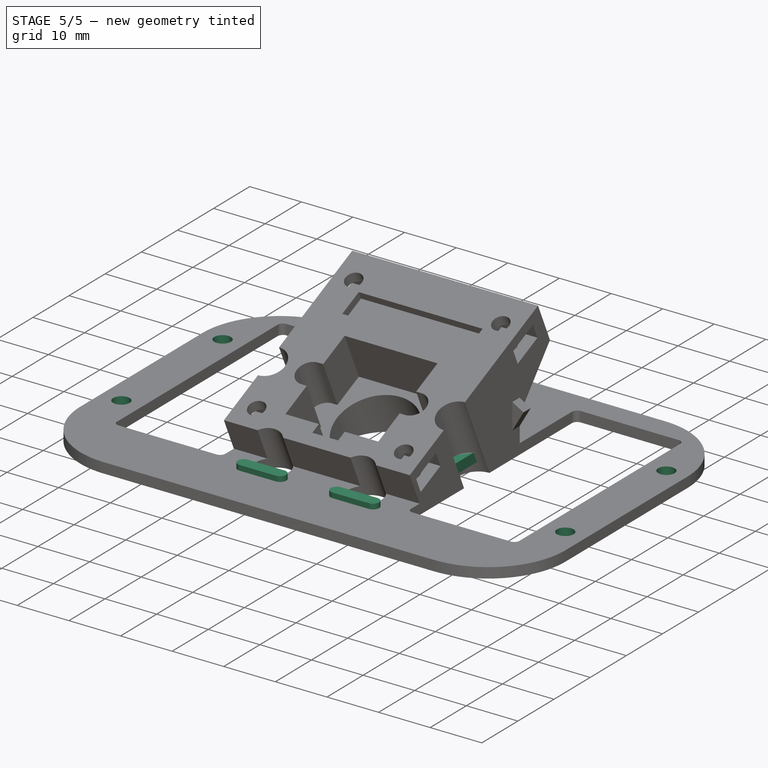
[diagram: stage 5 of 5 — iso view after this stage's code; geometry added in this stage tinted green]
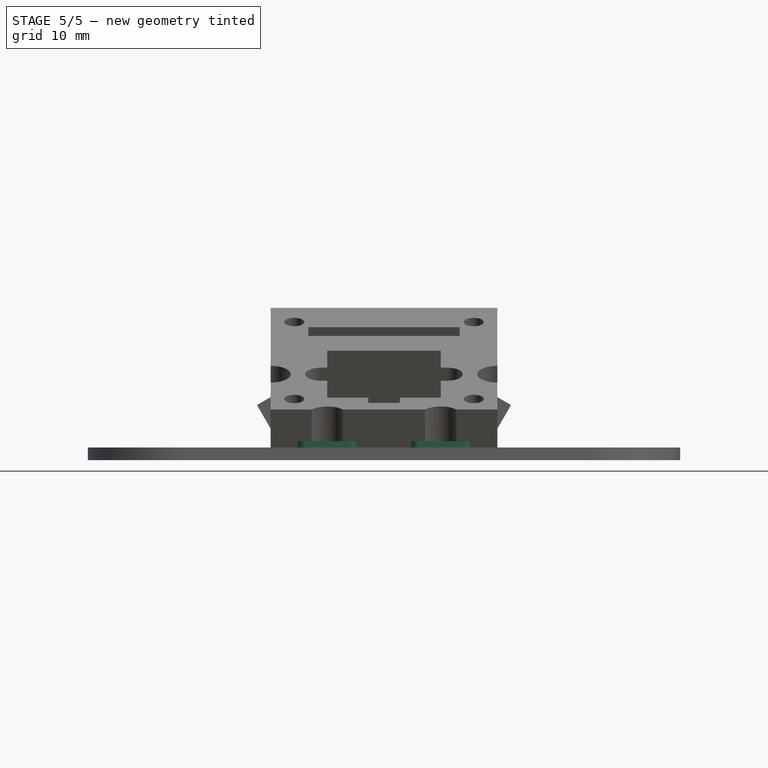
[diagram: stage 5 of 5 — front view after this stage's code; geometry added in this stage tinted green]
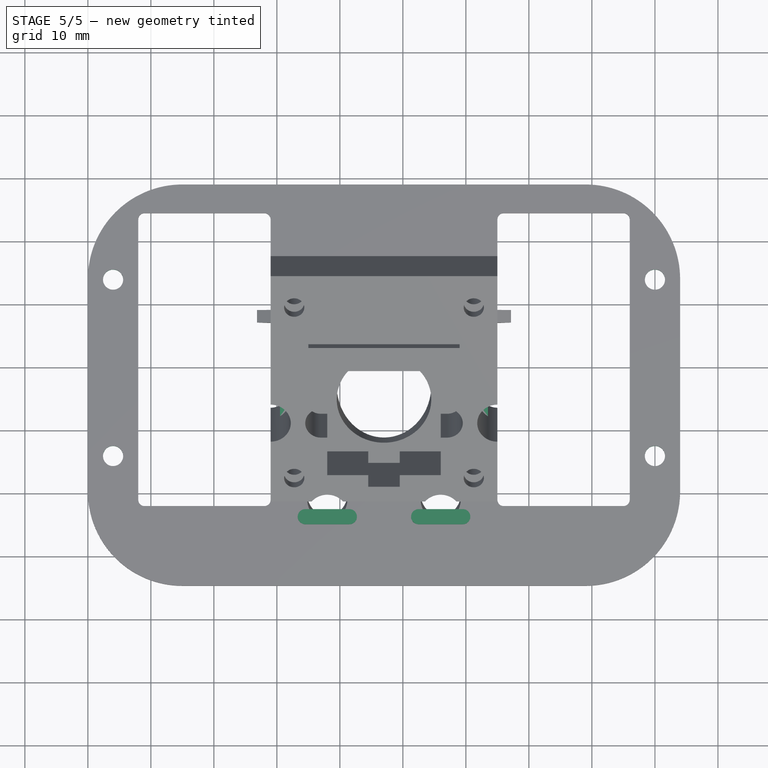
[diagram: stage 5 of 5 — top view after this stage's code; geometry added in this stage tinted green]
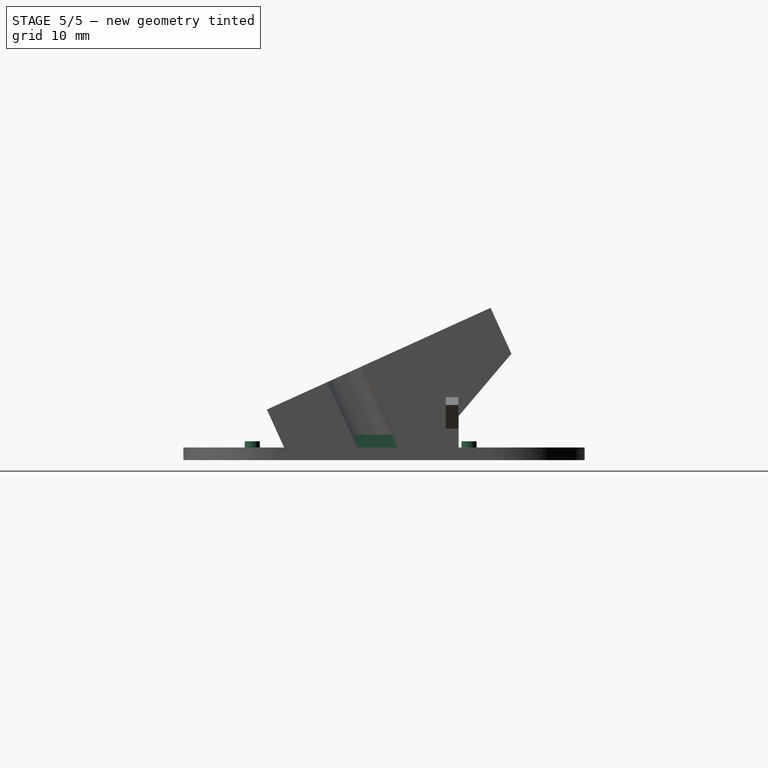
[diagram: stage 5 of 5 — right view after this stage's code; geometry added in this stage tinted green]
FEATURE [Sketcher::SketchObject] Sketch155
  MapMode = 5
  Placement = pos=(-9.7e-15,0,44) rot=(0,0,1;0rad)
  Support = -> [Pad049]
  sketch-geometry (18):
    g0: ArcOfCircle CenterX=44.5 CenterY=-3.7 CenterZ=0 NormalX=0 NormalY=0 NormalZ=1 AngleXU=0 Radius=1.2 StartAngle=1.5708 EndAngle=4.71239
    g1: ArcOfCircle CenterX=51.5 CenterY=-3.7 CenterZ=0 NormalX=0 NormalY=0 NormalZ=1 AngleXU=0 Radius=1.2 StartAngle=4.71239 EndAngle=7.85398
    g2: LineSegment StartX=44.5 StartY=-4.9 StartZ=0 EndX=51.5 EndY=-4.9 EndZ=0
    g3: LineSegment StartX=44.5 StartY=-2.5 StartZ=0 EndX=51.5 EndY=-2.5 EndZ=0
    g4: ArcOfCircle CenterX=44.5 CenterY=30.7 CenterZ=0 NormalX=0 NormalY=0 NormalZ=1 AngleXU=0 Radius=1.2 StartAngle=1.5708 EndAngle=4.71239
    g5: ArcOfCircle CenterX=51.5 CenterY=30.7 CenterZ=0 NormalX=0 NormalY=0 NormalZ=1 AngleXU=0 Radius=1.2 StartAngle=4.71239 EndAngle=7.85398
    g6: LineSegment StartX=44.5 StartY=29.5 StartZ=0 EndX=51.5 EndY=29.5 EndZ=0
    g7: LineSegment StartX=44.5 StartY=31.9 StartZ=0 EndX=51.5 EndY=31.9 EndZ=0
    g8: ArcOfCircle CenterX=62.5 CenterY=30.7 CenterZ=0 NormalX=0 NormalY=0 NormalZ=1 AngleXU=0 Radius=1.2 StartAngle=1.5708 EndAngle=4.71239
    g9: ArcOfCircle CenterX=69.5 CenterY=30.7 CenterZ=0 NormalX=0 NormalY=0 NormalZ=1 AngleXU=0 Radius=1.2 StartAngle=4.71239 EndAngle=7.85398
    g10: LineSegment StartX=62.5 StartY=29.5 StartZ=0 EndX=69.5 EndY=29.5 EndZ=0
    g11: LineSegment StartX=62.5 StartY=31.9 StartZ=0 EndX=69.5 EndY=31.9 EndZ=0
    g12: ArcOfCircle CenterX=62.5 CenterY=-3.7 CenterZ=0 NormalX=0 NormalY=0 NormalZ=1 AngleXU=0 Radius=1.2 StartAngle=1.5708 EndAngle=4.71239
    g13: ArcOfCircle CenterX=69.5 CenterY=-3.7 CenterZ=0 NormalX=0 NormalY=0 NormalZ=1 AngleXU=0 Radius=1.2 StartAngle=4.71239 EndAngle=7.85398
    g14: LineSegment StartX=62.5 StartY=-4.9 StartZ=0 EndX=69.5 EndY=-4.9 EndZ=0
    g15: LineSegment StartX=62.5 StartY=-2.5 StartZ=0 EndX=69.5 EndY=-2.5 EndZ=0
    g16: LineSegment [constr] StartX=57 StartY=40 StartZ=0 EndX=57 EndY=-30 EndZ=0
    g17: LineSegment [constr] StartX=48 StartY=40 StartZ=0 EndX=48 EndY=-30 EndZ=0
  constraints (45):
    c: Tangent(g0,g3) = 1.5708
    c: Tangent(g0,g2) = -1.5708
    c: Tangent(g2,g1) = -1.5708
    c: Tangent(g3,g1) = 1.5708
    c: Horizontal(g2)
    c: Equal(g0,g1)
    c: Tangent(g4,g7) = 1.5708
    c: Tangent(g4,g6) = -1.5708
    c: Tangent(g6,g5) = -1.5708
    c: Tangent(g7,g5) = 1.5708
    c: Horizontal(g6)
    c: Equal(g4,g5)
    c: Tangent(g8,g11) = 1.5708
    c: Tangent(g8,g10) = -1.5708
    c: Tangent(g10,g9) = -1.5708
    c: Tangent(g11,g9) = 1.5708
    c: Horizontal(g10)
    c: Equal(g8,g9)
    c: Tangent(g12,g15) = 1.5708
    c: Tangent(g12,g14) = -1.5708
    c: Tangent(g14,g13) = -1.5708
    c: Tangent(g15,g13) = 1.5708
    c: Horizontal(g14)
    c: Equal(g12,g13)
    c: Equal(g1,g12)
    c: Equal(g12,g5)
    c: Equal(g5,g8)
    c: Horizontal(g1,g12)
    c: Vertical(g4,g0)
    c: Equal(g11,g7)
    c: Equal(g7,g3)
    c: Equal(g3,g15)
    c: DistanceY(g0,g-1) = 2.5
    c: DistanceX(g-1,g16) = 57
    c: DistanceY(g16,g-1) = 30
    c: DistanceY(g-1,g16) = 40
    c: Symmetric(g1,g12,g16)
    c: Symmetric(g5,g8,g16)
    c: Radius(g13) = 1.2
    c: DistanceX(g17,g16) = 9
    c: Symmetric(g4,g5,g17)
    c: DistanceX(g3,g3) = 7
    c: Horizontal(g17,g16)
    c: Horizontal(g17,g16)
    c: DistanceY(g0,g4) = 32
FEATURE [PartDesign::Pad] Pad050  label="Top and Bottom LED Restrain"
  BaseFeature = -> Pad049
  Length = 1
  Length2 = 100
  Profile = -> Sketch155
  Type = 0
FEATURE [Sketcher::SketchObject] Sketch156
  AttachmentOffset = pos=(0,0,-11) rot=(0,0,1;0rad)
  ExternalGeometry = -> [Pad050]
  MapMode = 5
  Placement = pos=(0,11,2.4e-15) rot=(1,0,0;1.5708rad)
  Support = -> [XZ_Plane019]
  sketch-geometry (9):
    g0: LineSegment StartX=45.5 StartY=44 StartZ=0 EndX=40.5 EndY=44 EndZ=0
    g1: LineSegment StartX=40.5 StartY=44 StartZ=0 EndX=40.5 EndY=46 EndZ=0
    g2: LineSegment StartX=40.5 StartY=46 StartZ=0 EndX=45.5 EndY=46 EndZ=0
    g3: LineSegment StartX=45.5 StartY=46 StartZ=0 EndX=45.5 EndY=44 EndZ=0
    g4: LineSegment StartX=73.5 StartY=44 StartZ=0 EndX=68.5 EndY=44 EndZ=0
    g5: LineSegment StartX=68.5 StartY=44 StartZ=0 EndX=68.5 EndY=46 EndZ=0
    g6: LineSegment StartX=68.5 StartY=46 StartZ=0 EndX=73.5 EndY=46 EndZ=0
    g7: LineSegment StartX=73.5 StartY=46 StartZ=0 EndX=73.5 EndY=44 EndZ=0
    g8: LineSegment [constr] StartX=57 StartY=70 StartZ=0 EndX=57 EndY=0 EndZ=0
  constraints (26):
    c: Coincident(g0,g1)
    c: Coincident(g1,g2)
    c: Coincident(g2,g3)
    c: Coincident(g3,g0)
    c: Horizontal(g0)
    c: Horizontal(g2)
    c: Vertical(g1)
    c: Vertical(g3)
    c: Coincident(g4,g5)
    c: Coincident(g5,g6)
    c: Coincident(g6,g7)
    c: Coincident(g7,g4)
    c: Horizontal(g4)
    c: Horizontal(g6)
    c: Vertical(g5)
    c: Vertical(g7)
    c: Equal(g1,g7)
    c: DistanceY(g5,g5) = 2
    c: PointOnObject(g8,g-1)
    c: DistanceY(g8,g8) = 70
    c: Symmetric(g1,g6,g8)
    c: Symmetric(g5,g2,g8)
    c: DistanceX(g-1,g8) = 57
    c: Horizontal(g0,g-3)
    c: DistanceX(g2,g2) = 5
    c: DistanceX(g2,g5) = 23
FEATURE [PartDesign::Pad] Pad051  label="Middle LED Restrain"
  BaseFeature = -> Pad050
  Length = 15
  Length2 = 100
  Profile = -> Sketch156
  Reversed = true
  Type = 0
FEATURE [Sketcher::SketchObject] Sketch157
  MapMode = 5
  Placement = pos=(0,0,44) rot=(0,0,1;0rad)
  Support = -> [Pad051]
  sketch-geometry (4):
    g0: Circle CenterX=14 CenterY=33.95 CenterZ=0 NormalX=0 NormalY=0 NormalZ=1 AngleXU=0 Radius=1.6
    g1: Circle CenterX=100 CenterY=33.95 CenterZ=0 NormalX=0 NormalY=0 NormalZ=1 AngleXU=0 Radius=1.6
    g2: Circle CenterX=100 CenterY=5.95 CenterZ=0 NormalX=0 NormalY=0 NormalZ=1 AngleXU=0 Radius=1.6
    g3: Circle CenterX=14 CenterY=5.95 CenterZ=0 NormalX=0 NormalY=0 NormalZ=1 AngleXU=0 Radius=1.6
  constraints (12):
    c: Equal(g0,g1)
    c: Equal(g1,g2)
    c: Equal(g2,g3)
    c: Horizontal(g3,g2)
    c: Horizontal(g1,g0)
    c: Vertical(g0,g3)
    c: Vertical(g2,g1)
    c: DistanceY(g2,g1) = 28
    c: DistanceX(g0,g1) = 86
    c: DistanceX(g-1,g3) = 14
    c: DistanceY(g-1,g3) = 5.95
    c: Radius(g3) = 1.6
FEATURE [PartDesign::Pocket] Pocket070  label="Mounting Screwholes"
  BaseFeature = -> Pad051
  Length = 5
  Length2 = 100
  Profile = -> Sketch157
  Type = 0
FEATURE [PartDesign::Body] Body017  label="Cameramount"
  Group = -> [Sketch143,Pad047,Sketch144,Pad048,Sketch145,Pocket061,Fillet010,Sketch146,Pocket062,Sketch147,Pocket063,Sketch148,Pocket064,Sketch149,Pocket065,Sketch150,Pocket066,Sketch151,Pocket067,Sketch152,Pocket068,Sketch153,Pocket069,Sketch154,Pad049,Sketch155,Pad050,Sketch156,Pad051,Sketch157,Pocket070]
  Origin = -> Origin019
  Tip = -> Pocket070
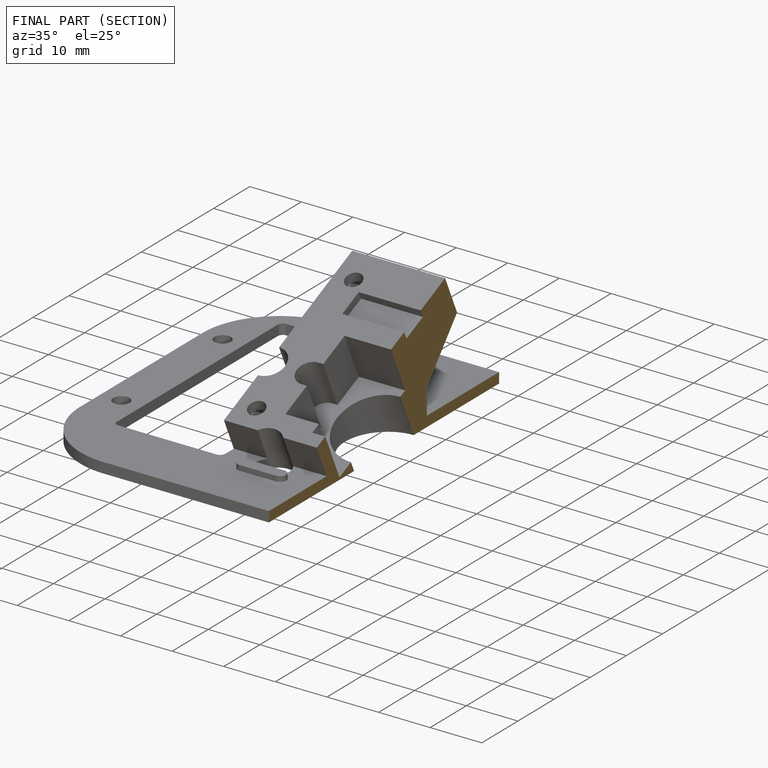
[diagram: finished part — half-section view (interior)]
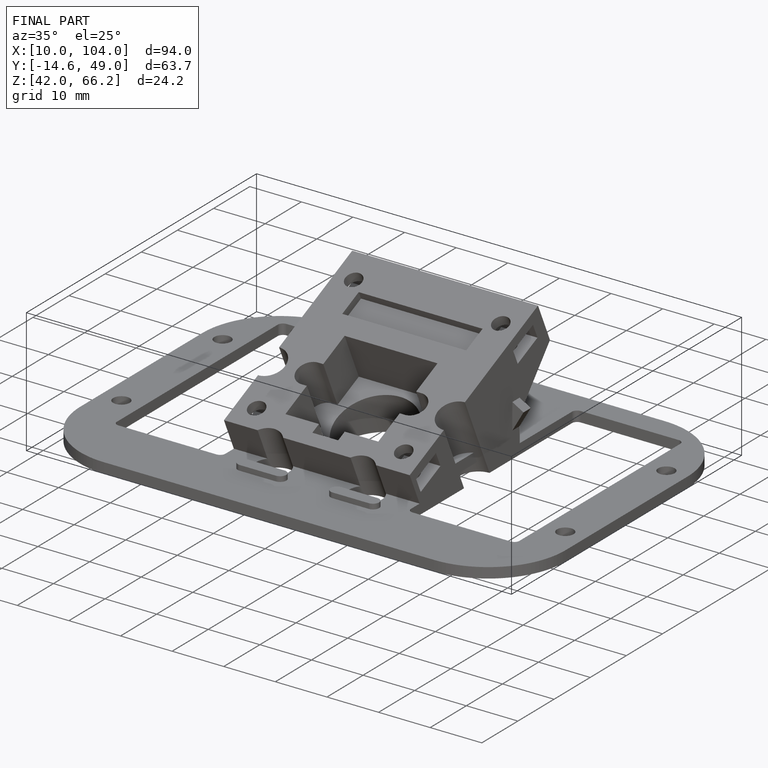
[diagram: finished part — iso view with bounding-box wireframe]
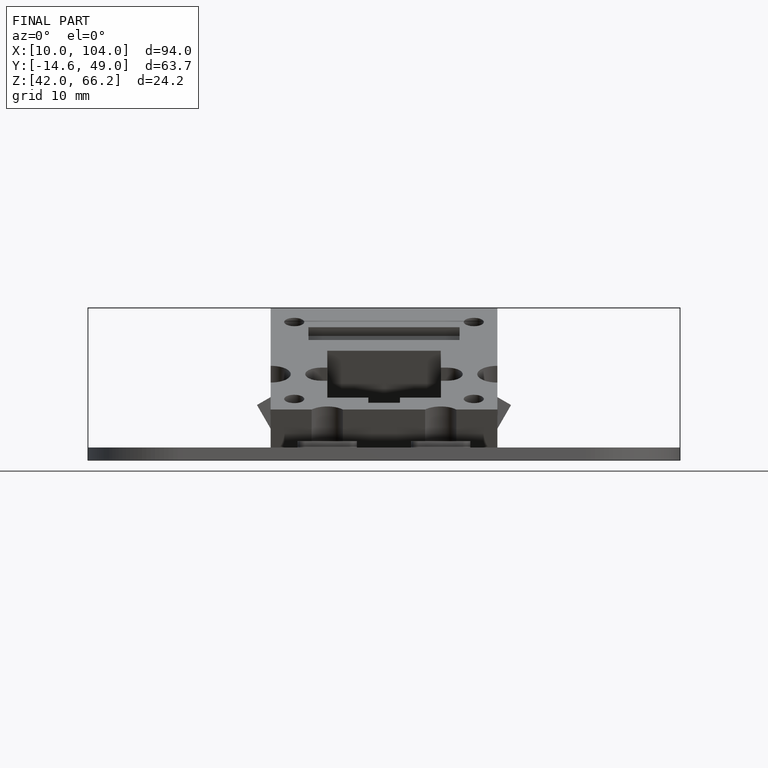
[diagram: finished part — front view with bounding-box wireframe]
